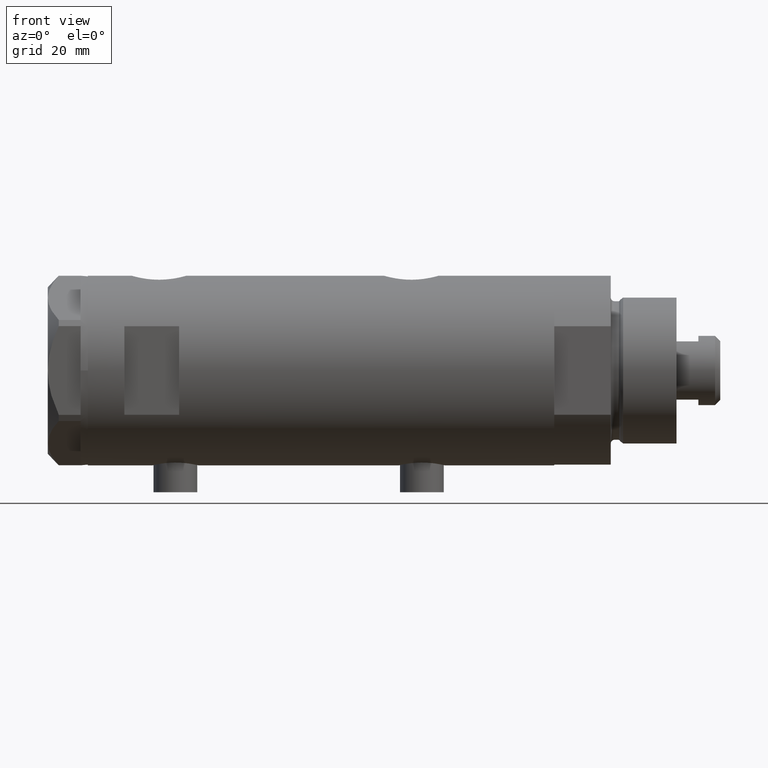
[diagram: clean part render]
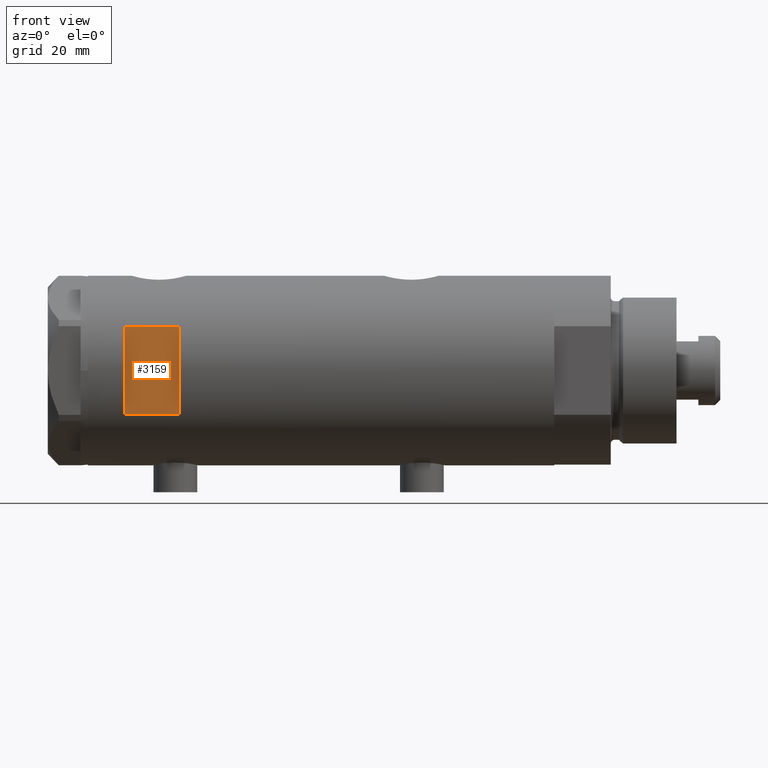
[diagram: same view with one face highlighted and labeled with its STEP entity id]
A machine part, front view. The second image highlights one B-rep face of the part: STEP entity #3159.
In plain terms, the highlighted planar face has unit normal (-0, 1, 0).
Its self-contained STEP definition (entity closure, byte-faithful):
#2 = DIRECTION ( 'NONE',  ( -0.000000000000000000, -0.000000000000000000, -1.000000000000000000 ) ) ;
#187 = CARTESIAN_POINT ( 'NONE',  ( 12.12435565298214080, -23.00000000000000355, 53.94999999999999574 ) ) ;
#194 = CARTESIAN_POINT ( 'NONE',  ( 12.12435565298214080, -23.00000000000000355, 38.94999999999999574 ) ) ;
#397 = CARTESIAN_POINT ( 'NONE',  ( -26.00000000000000355, -23.00000000000000355, 53.94999999999999574 ) ) ;
#707 = AXIS2_PLACEMENT_3D ( 'NONE', #3193, #3214, #3906 ) ;
#796 = VECTOR ( 'NONE', #1840, 1000.000000000000000 ) ;
#1065 = VERTEX_POINT ( 'NONE', #194 ) ;
#1101 = ORIENTED_EDGE ( 'NONE', *, *, #1105, .T. ) ;
#1105 = EDGE_CURVE ( 'NONE', #3618, #2757, #1110, .T. ) ;
#1110 = LINE ( 'NONE', #4004, #1807 ) ;
#1121 = EDGE_CURVE ( 'NONE', #3618, #1279, #1139, .T. ) ;
#1139 = LINE ( 'NONE', #397, #2650 ) ;
#1279 = VERTEX_POINT ( 'NONE', #187 ) ;
#1480 = VECTOR ( 'NONE', #5146, 1000.000000000000000 ) ;
#1546 = EDGE_CURVE ( 'NONE', #1065, #1279, #1994, .T. ) ;
#1552 = CARTESIAN_POINT ( 'NONE',  ( 12.12435565298214080, -23.00000000000000355, -63.95000000000000995 ) ) ;
#1766 = EDGE_CURVE ( 'NONE', #2757, #1065, #2630, .T. ) ;
#1807 = VECTOR ( 'NONE', #2, 1000.000000000000000 ) ;
#1840 = DIRECTION ( 'NONE',  ( 1.000000000000000000, -0.000000000000000000, -0.000000000000000000 ) ) ;
#1994 = LINE ( 'NONE', #1552, #1480 ) ;
#2025 = DIRECTION ( 'NONE',  ( 1.000000000000000000, -0.000000000000000000, -0.000000000000000000 ) ) ;
#2359 = FACE_OUTER_BOUND ( 'NONE', #5101, .T. ) ;
#2630 = LINE ( 'NONE', #5019, #796 ) ;
#2650 = VECTOR ( 'NONE', #2025, 1000.000000000000000 ) ;
#2757 = VERTEX_POINT ( 'NONE', #4584 ) ;
#2794 = ORIENTED_EDGE ( 'NONE', *, *, #1121, .F. ) ;
#2951 = ORIENTED_EDGE ( 'NONE', *, *, #1546, .T. ) ;
#3159 = ADVANCED_FACE ( 'NONE', ( #2359 ), #3592, .F. ) ;
#3193 = CARTESIAN_POINT ( 'NONE',  ( -26.00000000000000355, -23.00000000000000355, 53.94999999999999574 ) ) ;
#3214 = DIRECTION ( 'NONE',  ( 0.000000000000000000, 1.000000000000000000, 0.000000000000000000 ) ) ;
#3592 = PLANE ( 'NONE',  #707 ) ;
#3618 = VERTEX_POINT ( 'NONE', #4705 ) ;
#3906 = DIRECTION ( 'NONE',  ( 0.000000000000000000, -0.000000000000000000, 1.000000000000000000 ) ) ;
#4004 = CARTESIAN_POINT ( 'NONE',  ( -12.12435565298214080, -23.00000000000000355, -63.95000000000000995 ) ) ;
#4577 = ORIENTED_EDGE ( 'NONE', *, *, #1766, .T. ) ;
#4584 = CARTESIAN_POINT ( 'NONE',  ( -12.12435565298214080, -23.00000000000000355, 38.94999999999999574 ) ) ;
#4705 = CARTESIAN_POINT ( 'NONE',  ( -12.12435565298214080, -23.00000000000000355, 53.94999999999999574 ) ) ;
#5019 = CARTESIAN_POINT ( 'NONE',  ( -26.00000000000000355, -23.00000000000000355, 38.94999999999999574 ) ) ;
#5101 = EDGE_LOOP ( 'NONE', ( #1101, #4577, #2951, #2794 ) ) ;
#5146 = DIRECTION ( 'NONE',  ( 0.000000000000000000, 0.000000000000000000, 1.000000000000000000 ) ) ;